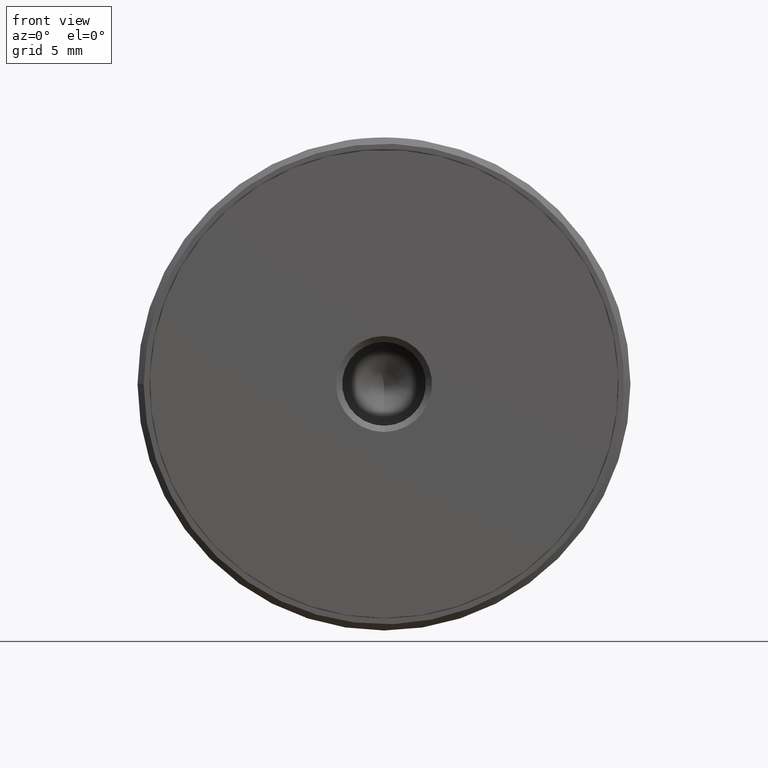
[diagram: clean part render]
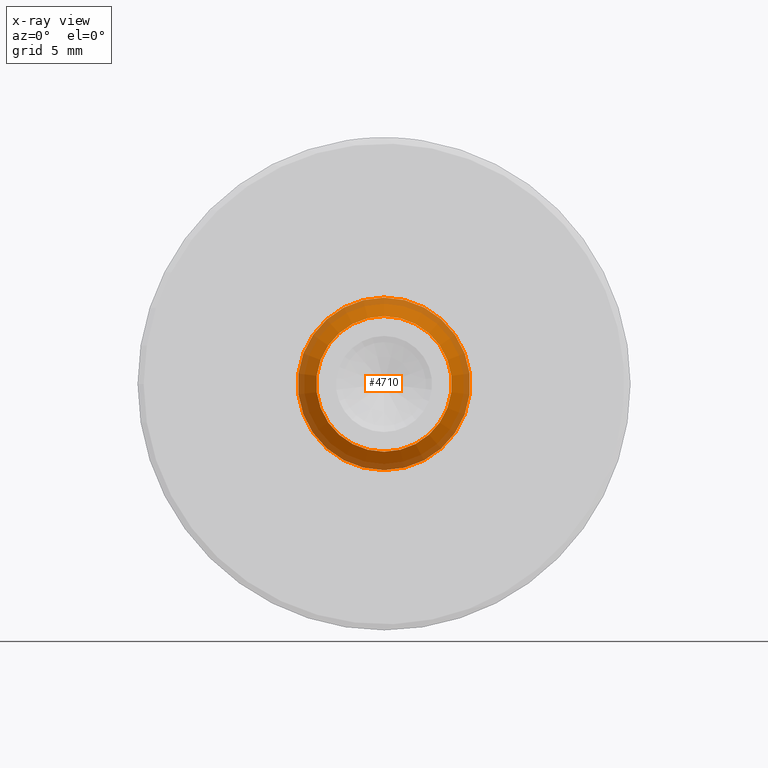
[diagram: x-ray — body ghosted, one internal face saturated and labeled with its STEP entity id]
A machine part, front view, then the same camera in x-ray: the body is ghosted and one INTERNAL B-rep face — a face not visible from any outside direction — is saturated and labeled: STEP entity #4710.
In plain terms, the highlighted conical surface has half-angle 45 deg.
Its self-contained STEP definition (entity closure, byte-faithful):
#1779 = EDGE_LOOP ( 'NONE', ( #12329 ) ) ;
#2076 = CONICAL_SURFACE ( 'NONE', #14577, 5.500000000000000000, 0.7853981633974511656 ) ;
#2452 = CARTESIAN_POINT ( 'NONE',  ( 0.000000000000000000, 0.000000000000000000, 0.000000000000000000 ) ) ;
#2533 = DIRECTION ( 'NONE',  ( 0.000000000000000000, -1.000000000000000000, 0.000000000000000000 ) ) ;
#2647 = CIRCLE ( 'NONE', #3634, 5.500000000000000000 ) ;
#3135 = CARTESIAN_POINT ( 'NONE',  ( 0.000000000000000000, 1.500000000000004885, -5.500000000000000000 ) ) ;
#3626 = DIRECTION ( 'NONE',  ( 0.000000000000000000, 0.000000000000000000, -1.000000000000000000 ) ) ;
#3634 = AXIS2_PLACEMENT_3D ( 'NONE', #9593, #2533, #3757 ) ;
#3655 = VERTEX_POINT ( 'NONE', #3135 ) ;
#3757 = DIRECTION ( 'NONE',  ( 0.000000000000000000, 0.000000000000000000, -1.000000000000000000 ) ) ;
#3842 = VERTEX_POINT ( 'NONE', #13915 ) ;
#4069 = DIRECTION ( 'NONE',  ( 0.000000000000000000, 0.000000000000000000, -1.000000000000000000 ) ) ;
#4710 = ADVANCED_FACE ( 'NONE', ( #13122, #5669 ), #2076, .F. ) ;
#4978 = EDGE_CURVE ( 'NONE', #3655, #3655, #2647, .T. ) ;
#5219 = CARTESIAN_POINT ( 'NONE',  ( -0.000000000000000000, 1.500000000000004885, 0.000000000000000000 ) ) ;
#5669 = FACE_BOUND ( 'NONE', #1779, .T. ) ;
#6488 = DIRECTION ( 'NONE',  ( 0.000000000000000000, -1.000000000000000000, 0.000000000000000000 ) ) ;
#6687 = EDGE_LOOP ( 'NONE', ( #12761 ) ) ;
#6841 = CIRCLE ( 'NONE', #9153, 7.000000000000013323 ) ;
#7223 = DIRECTION ( 'NONE',  ( -0.000000000000000000, 1.000000000000000000, -0.000000000000000000 ) ) ;
#9153 = AXIS2_PLACEMENT_3D ( 'NONE', #2452, #7223, #3626 ) ;
#9593 = CARTESIAN_POINT ( 'NONE',  ( -0.000000000000000000, 1.500000000000004885, 0.000000000000000000 ) ) ;
#12329 = ORIENTED_EDGE ( 'NONE', *, *, #4978, .F. ) ;
#12489 = EDGE_CURVE ( 'NONE', #3842, #3842, #6841, .T. ) ;
#12761 = ORIENTED_EDGE ( 'NONE', *, *, #12489, .F. ) ;
#13122 = FACE_OUTER_BOUND ( 'NONE', #6687, .T. ) ;
#13915 = CARTESIAN_POINT ( 'NONE',  ( 0.000000000000000000, 0.000000000000000000, -7.000000000000013323 ) ) ;
#14577 = AXIS2_PLACEMENT_3D ( 'NONE', #5219, #6488, #4069 ) ;